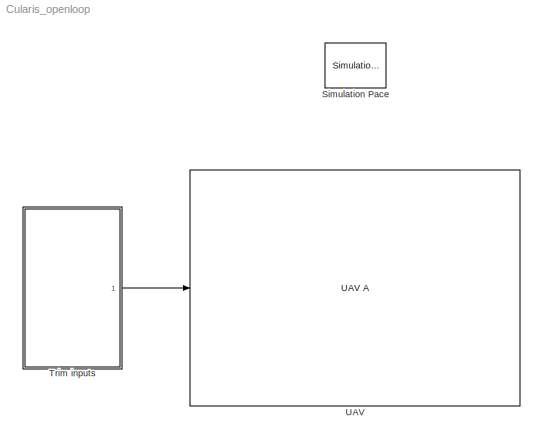
MODEL Cularis_openloop
KIND model
BLOCK [Reference] Simulation Pace  REF=aerolibanimutils/Simulation Pace
  AttributesFormatString = %<SleepMode>\n%<SimulationPace> sec/sec
  Commented = on
  OutputPaceError = off
  Ports = []
  SID = 6731
  SampleTime = -1
  SimulationPace = 1
  SleepMode = MATLAB Thread
  SourceBlock = aerolibanimutils/Simulation Pace
  SourceType = Simulation Pace
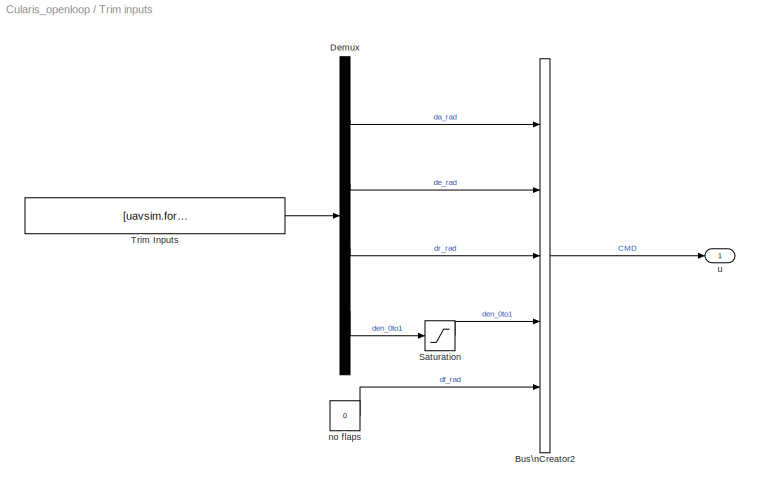
BLOCK [SubSystem] Trim inputs
  Ports = [0, 1]
  RequestExecContextInheritance = off
  SID = 7111
  SystemSampleTime = uavsim.ap.hardware.dt_attitudeloops_s
  Variant = off
BLOCK [BusCreator] Trim inputs/Bus\nCreator2
  DisplayOption = bar
  InheritFromInputs = on
  Inputs = 5
  NonVirtualBus = on
  OutDataTypeStr = Bus: CMD
  Ports = [5, 1]
  SID = 7112
BLOCK [Demux] Trim inputs/Demux
  DisplayOption = bar
  Ports = [1, 4]
  SID = 7113
BLOCK [Saturate] Trim inputs/Saturation
  InputPortMap = u0
  LowerLimit = 0
  Ports = [1, 1]
  SID = 7114
  UpperLimit = 1
BLOCK [Constant] Trim inputs/Trim Inputs
  SID = 7115
  Value = [uavsim.formation(1).u_trim(1:4)]
BLOCK [Constant] Trim inputs/no flaps
  SID = 7116
  Value = 0
BLOCK [Outport] Trim inputs/u
  IconDisplay = Port number
  OutDataTypeStr = Bus: CMD
  SID = 7117
BLOCK [Reference] UAV  REF=uavsimBlockset_Cularis_withUAV3D/UAV A
  Ports = [1, 2]
  SID = 7118
  SourceBlock = uavsimBlockset_Cularis_withUAV3D/UAV A
  aircraftmask_ID = 1
  aircraftmask_displayUAV3D = on
  aircraftmask_displayVortices = off
  aircraftmask_navigationLaw = -1
  aircraftmask_originNED_ECEF_rrm = uavsim.originNED_ECEF_radradm
  aircraftmask_p0_NED_m = uavsim.formation(1).p0_NED'
  aircraftmask_phithetapsi0 = uavsim.formation(1).phithetapsi0
  aircraftmask_phithetapsi_trim = uavsim.formation(1).phithetapsi0
  aircraftmask_pqr0 = uavsim.formation(1).omega0
  aircraftmask_uvw0 = uavsim.formation(1).uvw0
  aircraftmask_wakevortexenabled = off
  leaderID = 0
  uavsim = uavsim
LINE Trim inputs/Bus\nCreator2:1 -> Trim inputs/u:1
LINE Trim inputs/Demux:1 -> Trim inputs/Bus\nCreator2:1
LINE Trim inputs/Demux:2 -> Trim inputs/Bus\nCreator2:2
LINE Trim inputs/Demux:3 -> Trim inputs/Bus\nCreator2:3
LINE Trim inputs/Demux:4 -> Trim inputs/Saturation:1
LINE Trim inputs/Saturation:1 -> Trim inputs/Bus\nCreator2:4
LINE Trim inputs/Trim Inputs:1 -> Trim inputs/Demux:1
LINE Trim inputs/no flaps:1 -> Trim inputs/Bus\nCreator2:5
LINE Trim inputs:1 -> UAV:1
